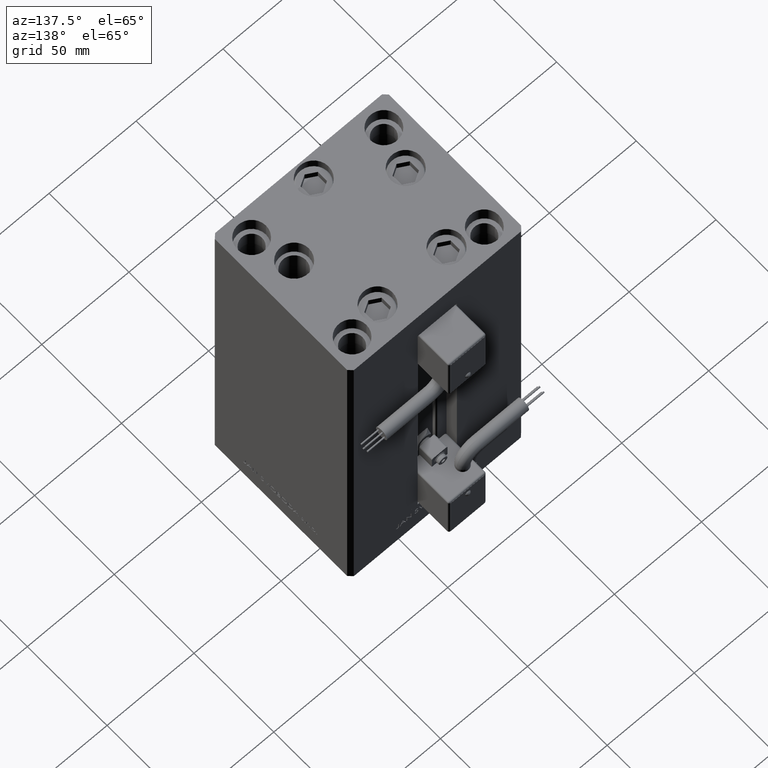
[diagram: clean part render]
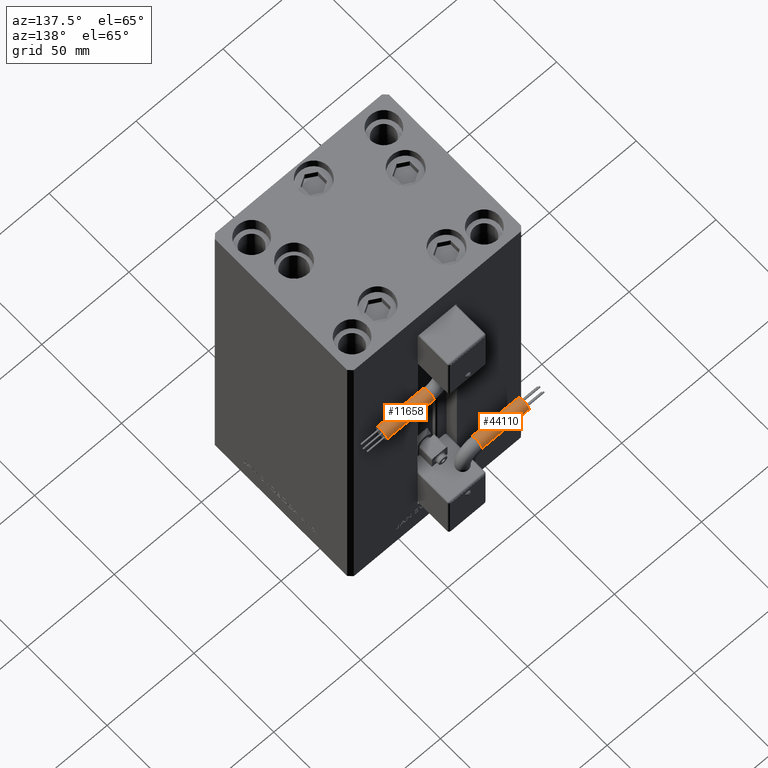
[diagram: same view with one multi-face feature highlighted, each face labeled with its STEP entity id]
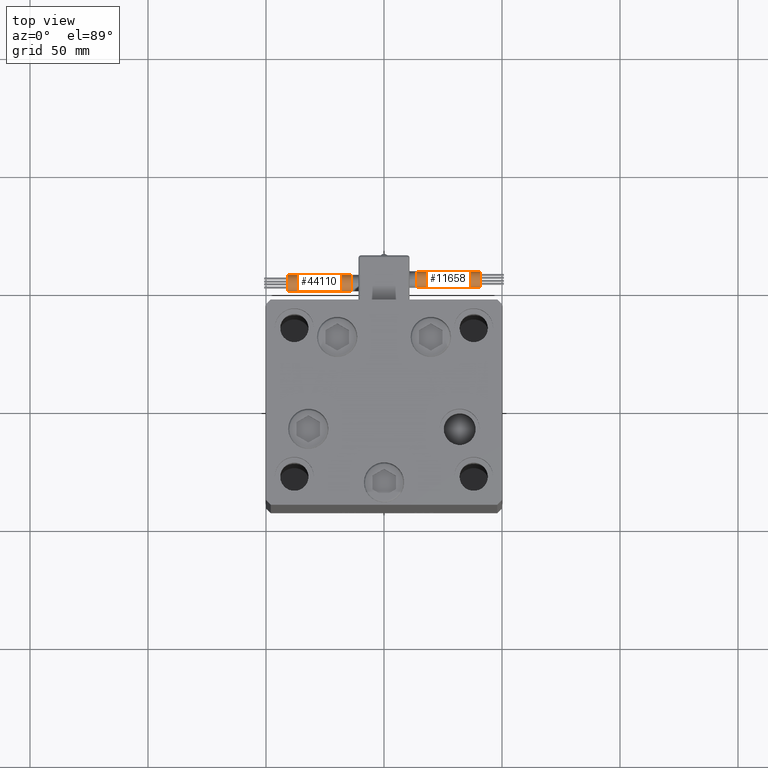
[diagram: same view with one multi-face feature highlighted, each face labeled with its STEP entity id]
A machine part, auxiliary view. The highlighted faces form ONE feature: a constant-radius fillet chain: 2 tangent blend faces with common blend radius 3.5 mm. The faces share edges in the B-rep.
A second angle (top view) of the same feature is appended — it is thin or edge-on in the first view.
Their STEP definitions:
[1] entity #44110 (Cylinder):
#477 = DIRECTION ( 'NONE',  ( 1.000000000000000000, -2.599999999999999847E-16, 2.220446049250000002E-16 ) ) ;
#1165 = CARTESIAN_POINT ( 'NONE',  ( 13.79999999999999716, 38.50000000000000000, -65.00000000000000000 ) ) ;
#2036 = VECTOR ( 'NONE', #477, 1000.000000000000000 ) ;
#3226 = CARTESIAN_POINT ( 'NONE',  ( 13.79999999999999893, 38.50000000000000000, -65.00000000000000000 ) ) ;
#3370 = CARTESIAN_POINT ( 'NONE',  ( 13.79999999999999893, 42.00000000000000000, -65.00000000000000000 ) ) ;
#4249 = EDGE_CURVE ( 'NONE', #8542, #39001, #6081, .T. ) ;
#4867 = DIRECTION ( 'NONE',  ( 0.000000000000000000, 0.000000000000000000, -1.000000000000000000 ) ) ;
#6081 = CIRCLE ( 'NONE', #36533, 3.500000000000003109 ) ;
#6228 = EDGE_CURVE ( 'NONE', #53350, #39001, #8354, .T. ) ;
#8340 = ORIENTED_EDGE ( 'NONE', *, *, #4249, .F. ) ;
#8354 = LINE ( 'NONE', #38024, #2036 ) ;
#8542 = VERTEX_POINT ( 'NONE', #34971 ) ;
#10936 = ORIENTED_EDGE ( 'NONE', *, *, #6228, .T. ) ;
#11798 = DIRECTION ( 'NONE',  ( 0.000000000000000000, 0.000000000000000000, -1.000000000000000000 ) ) ;
#12012 = ORIENTED_EDGE ( 'NONE', *, *, #31131, .T. ) ;
#16517 = CARTESIAN_POINT ( 'NONE',  ( 13.79999999999999893, 42.00000000000000000, -68.50000000000000000 ) ) ;
#16562 = DIRECTION ( 'NONE',  ( 1.000000000000000000, 0.000000000000000000, 2.220446049250000002E-16 ) ) ;
#16964 = DIRECTION ( 'NONE',  ( 1.000000000000000000, -2.599999999999999847E-16, 2.220446049250000002E-16 ) ) ;
#17421 = ORIENTED_EDGE ( 'NONE', *, *, #46528, .F. ) ;
#20073 = CARTESIAN_POINT ( 'NONE',  ( 40.80000000000000426, 45.50000000000000711, -65.00000000000000000 ) ) ;
#23626 = ORIENTED_EDGE ( 'NONE', *, *, #46399, .T. ) ;
#27007 = VERTEX_POINT ( 'NONE', #3226 ) ;
#27408 = CARTESIAN_POINT ( 'NONE',  ( 13.79999999999999893, 42.00000000000000000, -65.00000000000000000 ) ) ;
#28346 = CIRCLE ( 'NONE', #37893, 3.500000000000003109 ) ;
#28558 = DIRECTION ( 'NONE',  ( 0.000000000000000000, 0.000000000000000000, -1.000000000000000000 ) ) ;
#28589 = FACE_OUTER_BOUND ( 'NONE', #46238, .T. ) ;
#29656 = DIRECTION ( 'NONE',  ( 1.000000000000000000, 0.000000000000000000, 2.220446049250000002E-16 ) ) ;
#31131 = EDGE_CURVE ( 'NONE', #27007, #39121, #37406, .T. ) ;
#32053 = CYLINDRICAL_SURFACE ( 'NONE', #38668, 3.500000000000003109 ) ;
#34971 = CARTESIAN_POINT ( 'NONE',  ( 40.80000000000000426, 38.50000000000000000, -65.00000000000000000 ) ) ;
#36533 = AXIS2_PLACEMENT_3D ( 'NONE', #53067, #29656, #4867 ) ;
#36588 = DIRECTION ( 'NONE',  ( 1.000000000000000000, 0.000000000000000000, 2.220446049250000002E-16 ) ) ;
#37406 = CIRCLE ( 'NONE', #48692, 3.500000000000003109 ) ;
#37893 = AXIS2_PLACEMENT_3D ( 'NONE', #3370, #36588, #11798 ) ;
#38024 = CARTESIAN_POINT ( 'NONE',  ( 13.80000000000000071, 45.50000000000000711, -65.00000000000000000 ) ) ;
#38668 = AXIS2_PLACEMENT_3D ( 'NONE', #27408, #48613, #51604 ) ;
#39001 = VERTEX_POINT ( 'NONE', #20073 ) ;
#39121 = VERTEX_POINT ( 'NONE', #16517 ) ;
#44110 = ADVANCED_FACE ( 'NONE', ( #28589 ), #32053, .T. ) ;
#44835 = VECTOR ( 'NONE', #16964, 1000.000000000000000 ) ;
#45097 = CARTESIAN_POINT ( 'NONE',  ( 13.79999999999999893, 45.50000000000000711, -65.00000000000000000 ) ) ;
#46189 = CARTESIAN_POINT ( 'NONE',  ( 13.79999999999999893, 42.00000000000000000, -65.00000000000000000 ) ) ;
#46238 = EDGE_LOOP ( 'NONE', ( #12012, #23626, #10936, #8340, #17421 ) ) ;
#46399 = EDGE_CURVE ( 'NONE', #39121, #53350, #28346, .T. ) ;
#46528 = EDGE_CURVE ( 'NONE', #27007, #8542, #46593, .T. ) ;
#46593 = LINE ( 'NONE', #1165, #44835 ) ;
#48613 = DIRECTION ( 'NONE',  ( 1.000000000000000000, -2.599999999999999847E-16, 2.220446049250000002E-16 ) ) ;
#48692 = AXIS2_PLACEMENT_3D ( 'NONE', #46189, #16562, #28558 ) ;
#51604 = DIRECTION ( 'NONE',  ( -4.956352788505158337E-16, -1.000000000000000000, 0.000000000000000000 ) ) ;
#53067 = CARTESIAN_POINT ( 'NONE',  ( 40.80000000000000426, 42.00000000000000000, -65.00000000000000000 ) ) ;
#53350 = VERTEX_POINT ( 'NONE', #45097 ) ;
[2] entity #11658 (Cylinder):
#477 = DIRECTION ( 'NONE',  ( 1.000000000000000000, -2.599999999999999847E-16, 2.220446049250000002E-16 ) ) ;
#1165 = CARTESIAN_POINT ( 'NONE',  ( 13.79999999999999716, 38.50000000000000000, -65.00000000000000000 ) ) ;
#1401 = DIRECTION ( 'NONE',  ( 1.000000000000000000, 0.000000000000000000, 2.220446049250000002E-16 ) ) ;
#1683 = ORIENTED_EDGE ( 'NONE', *, *, #6228, .F. ) ;
#2036 = VECTOR ( 'NONE', #477, 1000.000000000000000 ) ;
#3226 = CARTESIAN_POINT ( 'NONE',  ( 13.79999999999999893, 38.50000000000000000, -65.00000000000000000 ) ) ;
#4889 = CIRCLE ( 'NONE', #43127, 3.500000000000003109 ) ;
#5089 = DIRECTION ( 'NONE',  ( 1.000000000000000000, 0.000000000000000000, 2.220446049250000002E-16 ) ) ;
#6158 = CARTESIAN_POINT ( 'NONE',  ( 13.79999999999999893, 41.99999999999999289, -61.50000000000000000 ) ) ;
#6228 = EDGE_CURVE ( 'NONE', #53350, #39001, #8354, .T. ) ;
#7548 = CIRCLE ( 'NONE', #51850, 3.500000000000003109 ) ;
#7819 = DIRECTION ( 'NONE',  ( 1.000000000000000000, -2.599999999999999847E-16, 2.220446049250000002E-16 ) ) ;
#8204 = AXIS2_PLACEMENT_3D ( 'NONE', #15450, #7819, #32081 ) ;
#8354 = LINE ( 'NONE', #38024, #2036 ) ;
#8464 = CIRCLE ( 'NONE', #25835, 3.500000000000003109 ) ;
#8542 = VERTEX_POINT ( 'NONE', #34971 ) ;
#8845 = DIRECTION ( 'NONE',  ( 0.000000000000000000, 0.000000000000000000, -1.000000000000000000 ) ) ;
#9710 = DIRECTION ( 'NONE',  ( 0.000000000000000000, 0.000000000000000000, -1.000000000000000000 ) ) ;
#11658 = ADVANCED_FACE ( 'NONE', ( #53252 ), #52712, .T. ) ;
#12833 = DIRECTION ( 'NONE',  ( 0.000000000000000000, 0.000000000000000000, -1.000000000000000000 ) ) ;
#15450 = CARTESIAN_POINT ( 'NONE',  ( 13.79999999999999893, 42.00000000000000000, -65.00000000000000000 ) ) ;
#16964 = DIRECTION ( 'NONE',  ( 1.000000000000000000, -2.599999999999999847E-16, 2.220446049250000002E-16 ) ) ;
#18260 = ORIENTED_EDGE ( 'NONE', *, *, #48733, .T. ) ;
#20073 = CARTESIAN_POINT ( 'NONE',  ( 40.80000000000000426, 45.50000000000000711, -65.00000000000000000 ) ) ;
#20905 = CARTESIAN_POINT ( 'NONE',  ( 40.80000000000000426, 42.00000000000000000, -65.00000000000000000 ) ) ;
#21305 = EDGE_CURVE ( 'NONE', #53350, #47667, #8464, .T. ) ;
#24212 = ORIENTED_EDGE ( 'NONE', *, *, #47652, .F. ) ;
#25835 = AXIS2_PLACEMENT_3D ( 'NONE', #38690, #1401, #12833 ) ;
#27007 = VERTEX_POINT ( 'NONE', #3226 ) ;
#29552 = DIRECTION ( 'NONE',  ( 1.000000000000000000, 0.000000000000000000, 2.220446049250000002E-16 ) ) ;
#32081 = DIRECTION ( 'NONE',  ( -4.956352788505158337E-16, -1.000000000000000000, 0.000000000000000000 ) ) ;
#34971 = CARTESIAN_POINT ( 'NONE',  ( 40.80000000000000426, 38.50000000000000000, -65.00000000000000000 ) ) ;
#37132 = ORIENTED_EDGE ( 'NONE', *, *, #21305, .T. ) ;
#38024 = CARTESIAN_POINT ( 'NONE',  ( 13.80000000000000071, 45.50000000000000711, -65.00000000000000000 ) ) ;
#38690 = CARTESIAN_POINT ( 'NONE',  ( 13.79999999999999893, 42.00000000000000000, -65.00000000000000000 ) ) ;
#39001 = VERTEX_POINT ( 'NONE', #20073 ) ;
#41529 = CARTESIAN_POINT ( 'NONE',  ( 13.79999999999999893, 42.00000000000000000, -65.00000000000000000 ) ) ;
#43127 = AXIS2_PLACEMENT_3D ( 'NONE', #20905, #5089, #9710 ) ;
#44796 = EDGE_LOOP ( 'NONE', ( #1683, #37132, #18260, #49685, #24212 ) ) ;
#44835 = VECTOR ( 'NONE', #16964, 1000.000000000000000 ) ;
#45097 = CARTESIAN_POINT ( 'NONE',  ( 13.79999999999999893, 45.50000000000000711, -65.00000000000000000 ) ) ;
#46528 = EDGE_CURVE ( 'NONE', #27007, #8542, #46593, .T. ) ;
#46593 = LINE ( 'NONE', #1165, #44835 ) ;
#47652 = EDGE_CURVE ( 'NONE', #39001, #8542, #4889, .T. ) ;
#47667 = VERTEX_POINT ( 'NONE', #6158 ) ;
#48733 = EDGE_CURVE ( 'NONE', #47667, #27007, #7548, .T. ) ;
#49685 = ORIENTED_EDGE ( 'NONE', *, *, #46528, .T. ) ;
#51850 = AXIS2_PLACEMENT_3D ( 'NONE', #41529, #29552, #8845 ) ;
#52712 = CYLINDRICAL_SURFACE ( 'NONE', #8204, 3.500000000000003109 ) ;
#53252 = FACE_OUTER_BOUND ( 'NONE', #44796, .T. ) ;
#53350 = VERTEX_POINT ( 'NONE', #45097 ) ;